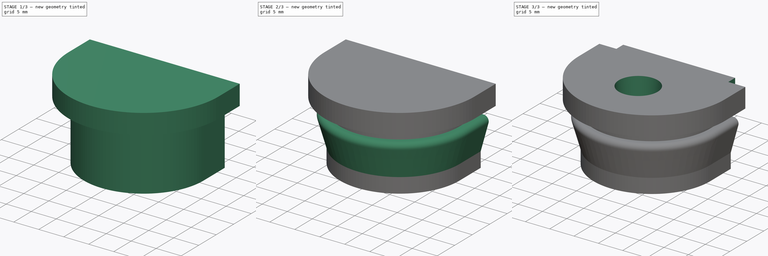
[diagram: build sequence overview — one tinted view per stage of 3, left to right]
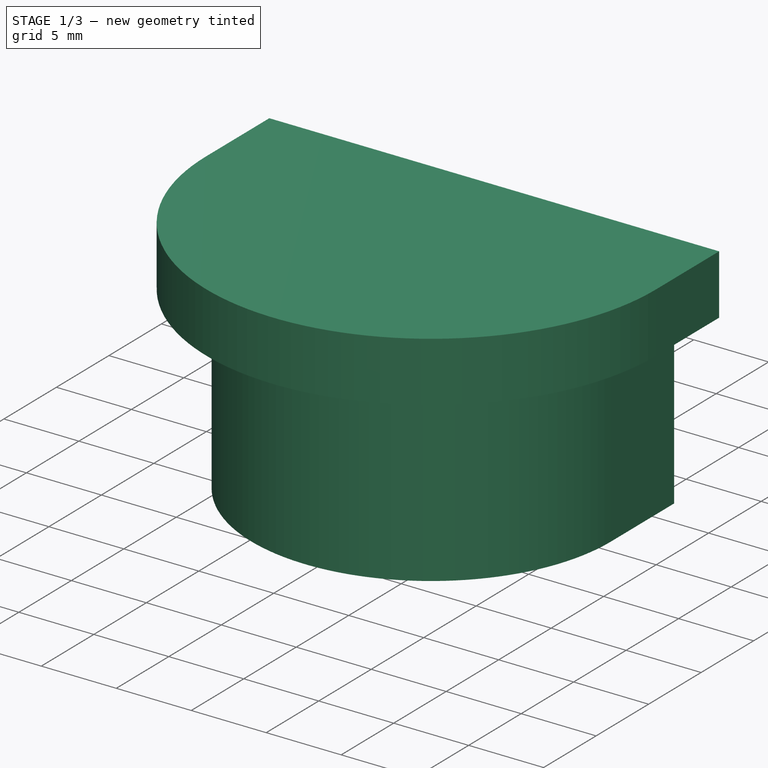
[diagram: stage 1 of 3 — iso view after this stage's code; geometry added in this stage tinted green]
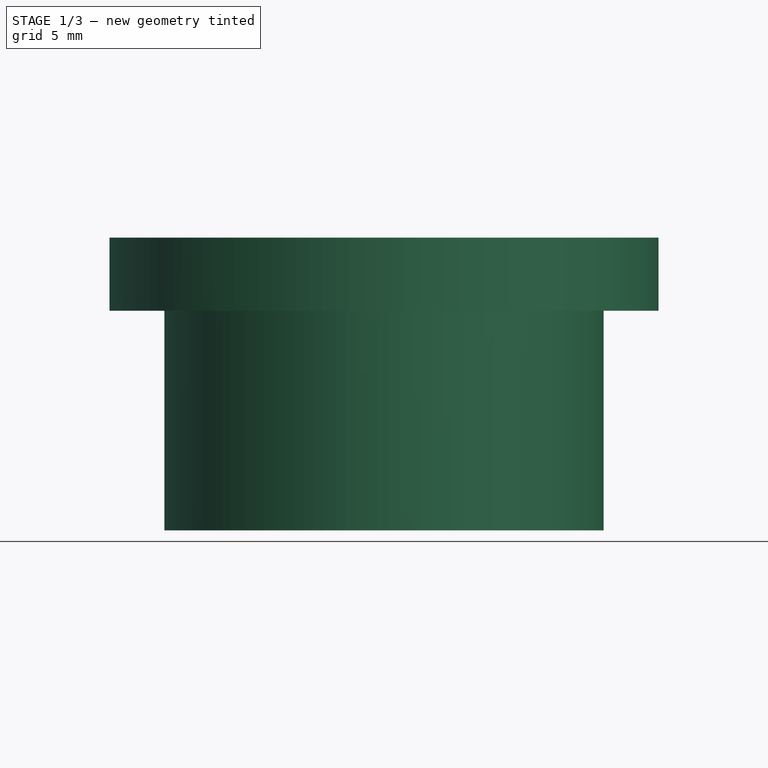
[diagram: stage 1 of 3 — front view after this stage's code; geometry added in this stage tinted green]
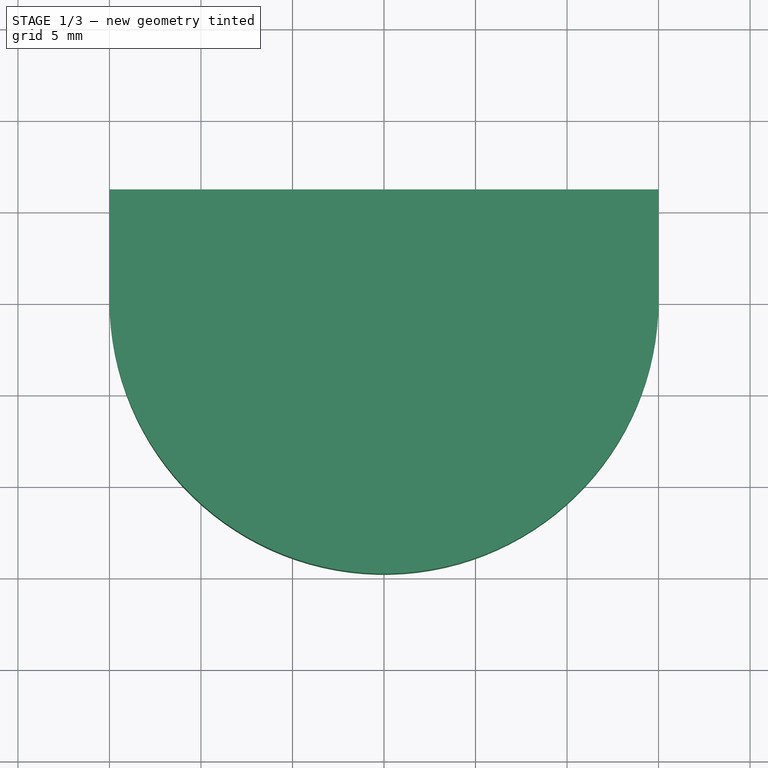
[diagram: stage 1 of 3 — top view after this stage's code; geometry added in this stage tinted green]
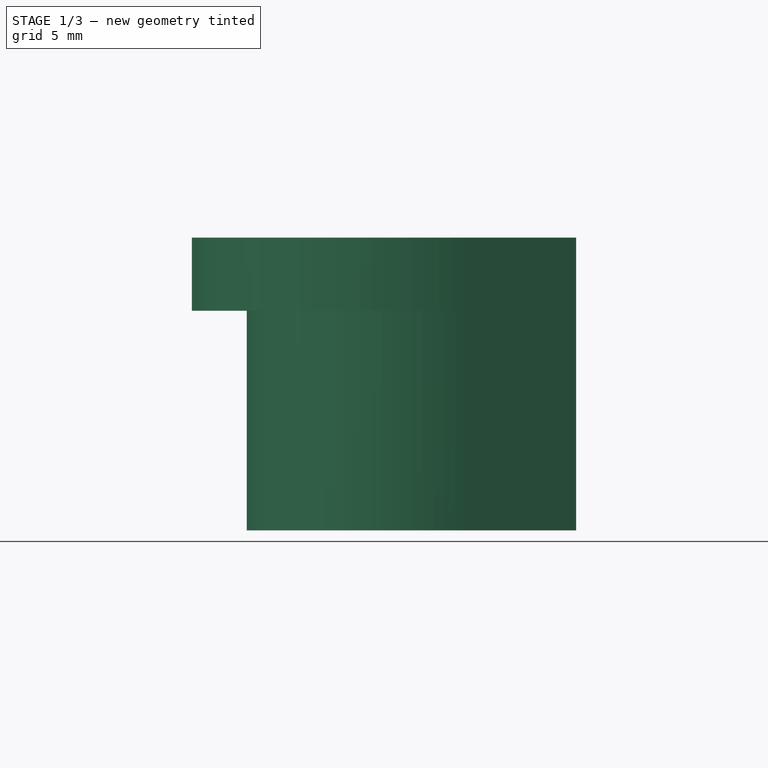
[diagram: stage 1 of 3 — right view after this stage's code; geometry added in this stage tinted green]
FCSTD DOCUMENT  (FreeCAD 1.0R39285 (Git))
Label: Ext_Box_Gland
License: CERN Open Hardware Licence permissive
LicenseURL: https://cern-ohl.web.cern.ch/
objects: Sketcher::SketchObject×5, PartDesign::Pad×3, PartDesign::AdditivePipe×1, PartDesign::Groove×1, PartDesign::Body×1
note: 26 computed .brp shape members not serialized (recipe doc carries the construction recipe); baked Part::Feature solids carry a one-line shape summary decoded from their .brp

FEATURE [Sketcher::SketchObject] Sketch
  ArcFitTolerance = 1e-06
  AttachmentSupport = -> [XY_Plane]
  FullyConstrained = true
  MakeInternals = false
  MapMode = 5
  sketch-geometry (4):
    g0: LineSegment StartX=-12 StartY=6 StartZ=0 EndX=12 EndY=6 EndZ=0
    g1: LineSegment StartX=12 StartY=6 StartZ=0 EndX=12 EndY=0 EndZ=0
    g2: ArcOfCircle CenterX=0 CenterY=0 CenterZ=0 NormalX=0 NormalY=0 NormalZ=1 AngleXU=0 Radius=12 StartAngle=3.14159 EndAngle=6.28319
    g3: LineSegment StartX=-12 StartY=-5.048e-13 StartZ=0 EndX=-12 EndY=6 EndZ=0
  constraints (11):
    c: Horizontal(g0)
    c: Coincident(g0,g1)
    c: PointOnObject(g1,g-1)
    c: Tangent(g1,g2) = 1.5708
    c: PointOnObject(g2,g-1)
    c: Coincident(g2,g3)
    c: Coincident(g3,g0)
    c: Vertical(g3)
    c: DistanceX(g0,g0) = 24
    c: Coincident(g2,g-1)
    c: DistanceY(g3,g3) = 6
FEATURE [PartDesign::Pad] Pad
  Direction = (0,0,1)
  Length = 12
  Length2 = 10
  Profile = -> Sketch
  ReferenceAxis = -> Sketch [N_Axis]
  Refine = true
  Suppressed = false
  Type = 0
FEATURE [Sketcher::SketchObject] Sketch001
  ArcFitTolerance = 1e-06
  AttachmentSupport = -> [Pad]
  ExternalGeometry = -> [Pad]
  FullyConstrained = true
  MakeInternals = false
  MapMode = 5
  Placement = pos=(0,0,12) rot=(0,0,1;0rad)
  sketch-geometry (4):
    g0: LineSegment StartX=15 StartY=6 StartZ=0 EndX=-15 EndY=6 EndZ=0
    g1: LineSegment StartX=-15 StartY=6 StartZ=0 EndX=-15 EndY=7.55e-14 EndZ=0
    g2: ArcOfCircle CenterX=0 CenterY=0 CenterZ=0 NormalX=0 NormalY=0 NormalZ=1 AngleXU=0 Radius=15 StartAngle=3.14159 EndAngle=6.28319
    g3: LineSegment StartX=15 StartY=3.63e-14 StartZ=0 EndX=15 EndY=6 EndZ=0
  constraints (11):
    c: Horizontal(g0)
    c: PointOnObject(g1,g-1)
    c: Tangent(g1,g2) = -1.5708
    c: PointOnObject(g2,g-1)
    c: Coincident(g2,g3)
    c: Coincident(g3,g0)
    c: Vertical(g3)
    c: Coincident(g2,g-1)
    c: Coincident(g0,g1)
    c: PointOnObject(g-3,g0)
    c: DistanceX(g0,g-3) = 3
FEATURE [PartDesign::Pad] Pad001
  BaseFeature = -> Pad
  Direction = (0,0,1)
  Length = 4
  Length2 = 10
  Profile = -> Sketch001
  ReferenceAxis = -> Sketch001 [N_Axis]
  Refine = true
  Suppressed = false
  Type = 0
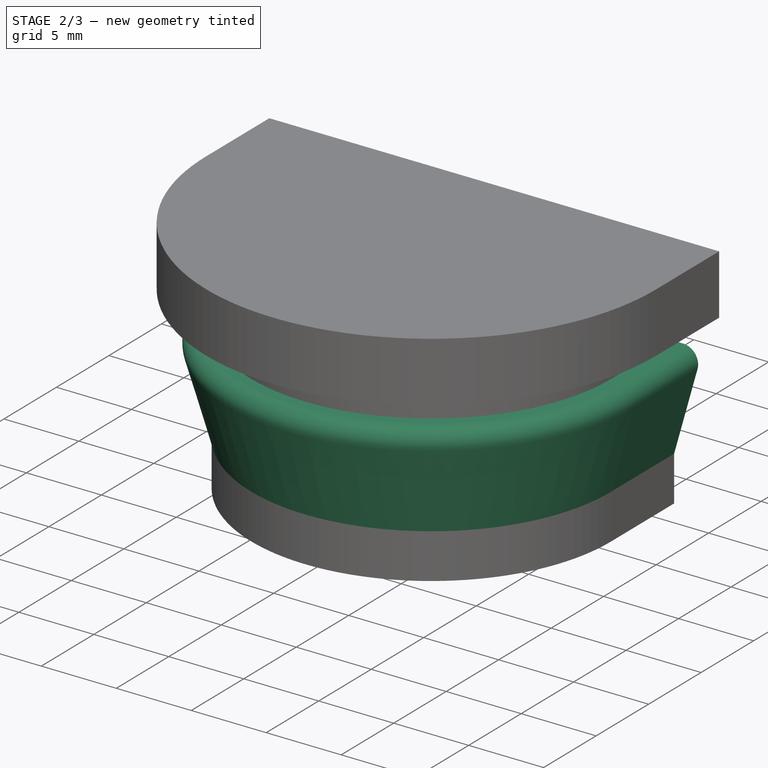
[diagram: stage 2 of 3 — iso view after this stage's code; geometry added in this stage tinted green]
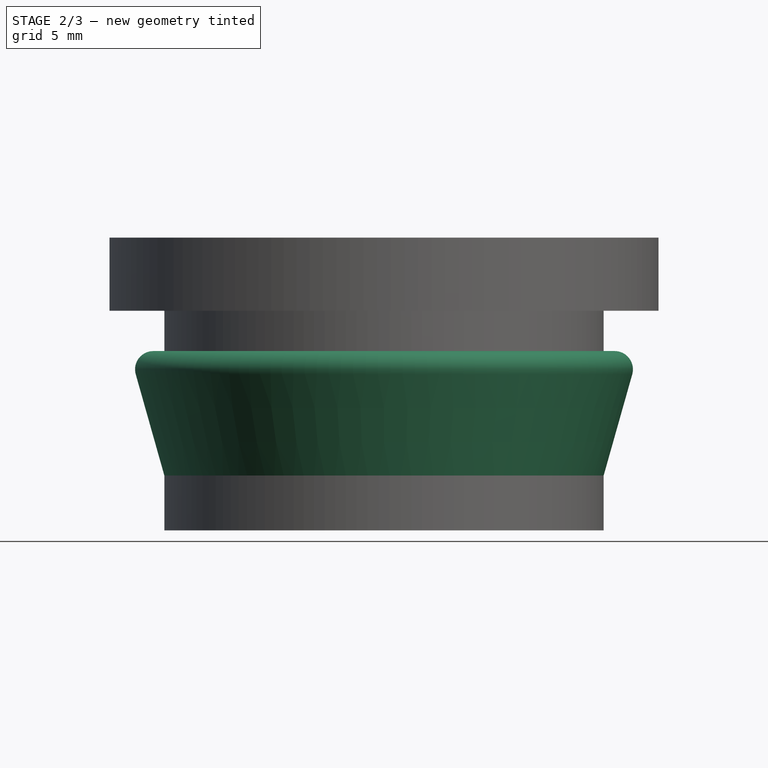
[diagram: stage 2 of 3 — front view after this stage's code; geometry added in this stage tinted green]
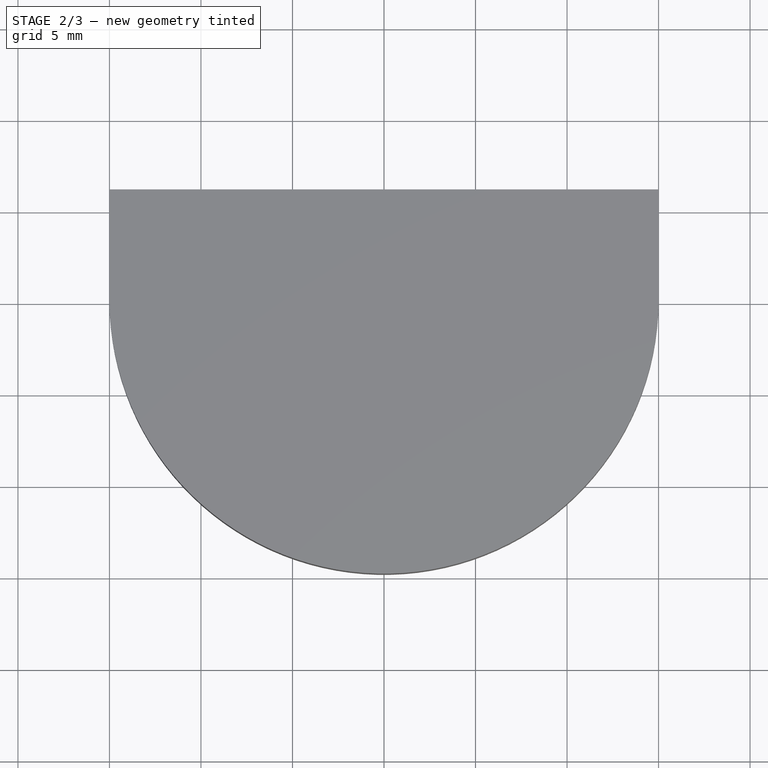
[diagram: stage 2 of 3 — top view after this stage's code; geometry added in this stage tinted green]
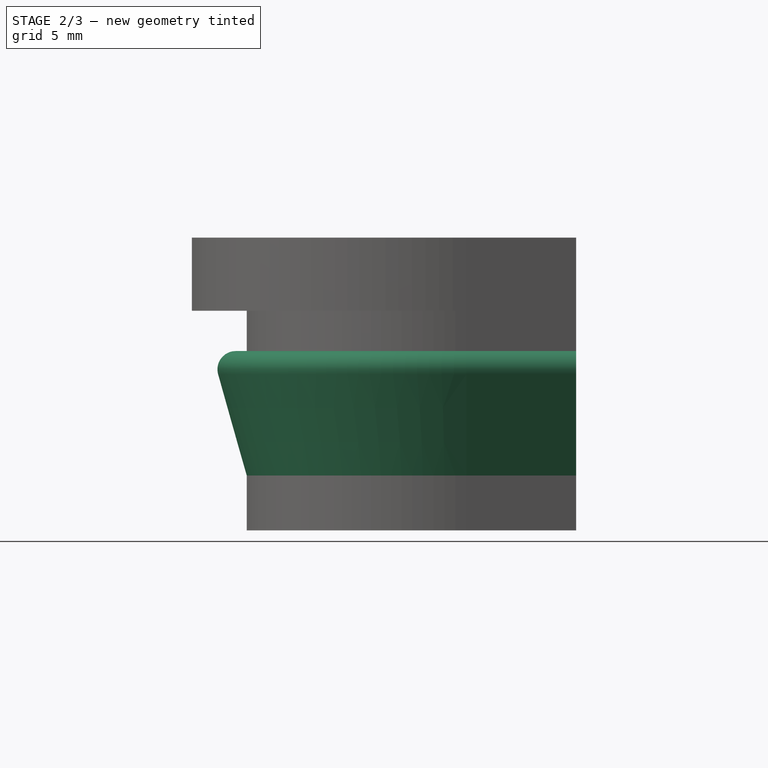
[diagram: stage 2 of 3 — right view after this stage's code; geometry added in this stage tinted green]
FEATURE [Sketcher::SketchObject] Sketch002
  ArcFitTolerance = 1e-06
  AttachmentSupport = -> [Pad001]
  ExternalGeometry = -> [Pad001]
  FullyConstrained = true
  MakeInternals = false
  MapMode = 5
  Placement = pos=(0,6,0) rot=(0,0.707107,0.707107;3.14159rad)
  sketch-geometry (4):
    g0: LineSegment StartX=-12 StartY=9.8 StartZ=0 EndX=-12.6 EndY=9.8 EndZ=0
    g1: ArcOfCircle CenterX=-12.6 CenterY=8.8 CenterZ=0 NormalX=0 NormalY=0 NormalZ=1 AngleXU=0 Radius=1 StartAngle=1.5708 EndAngle=3.41702
    g2: LineSegment StartX=-13.5623 StartY=8.52804 StartZ=0 EndX=-12 EndY=3 EndZ=0
    g3: LineSegment StartX=-12 StartY=3 StartZ=0 EndX=-12 EndY=9.8 EndZ=0
  constraints (11):
    c: PointOnObject(g0,g-3)
    c: Horizontal(g0)
    c: Tangent(g0,g1) = -1.5708
    c: Coincident(g2,g3)
    c: Coincident(g3,g0)
    c: DistanceY(g0,g-3) = 2.2
    c: Tangent(g1,g2) = -1.5708
    c: Radius(g1) = 1
    c: Vertical(g3)
    c: Distance(g2,g-3) = 3
    c: Distance(g0,g0) = 0.6
FEATURE [PartDesign::AdditivePipe] AdditivePipe
  AuxilleryCurvelinear = true
  AuxillerySpineTangent = false
  BaseFeature = -> Pad001
  Binormal = (0,0,0)
  Mode = 0
  Profile = -> Sketch002
  Refine = true
  Spine = -> Pad001 [Edge4,Edge11,Edge10]
  SpineTangent = false
  Suppressed = false
  Transformation = 0
  Transition = 0
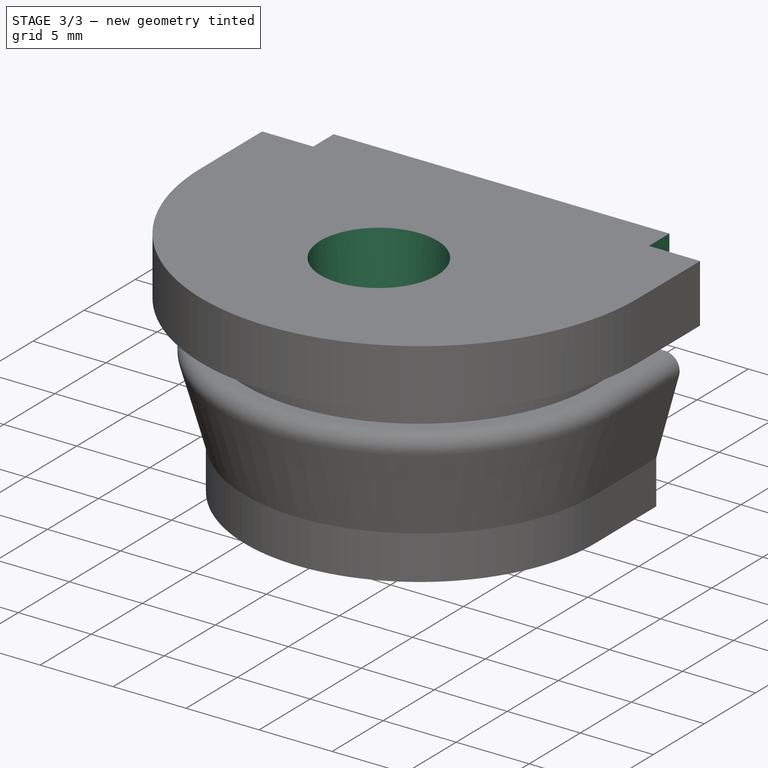
[diagram: stage 3 of 3 — iso view after this stage's code; geometry added in this stage tinted green]
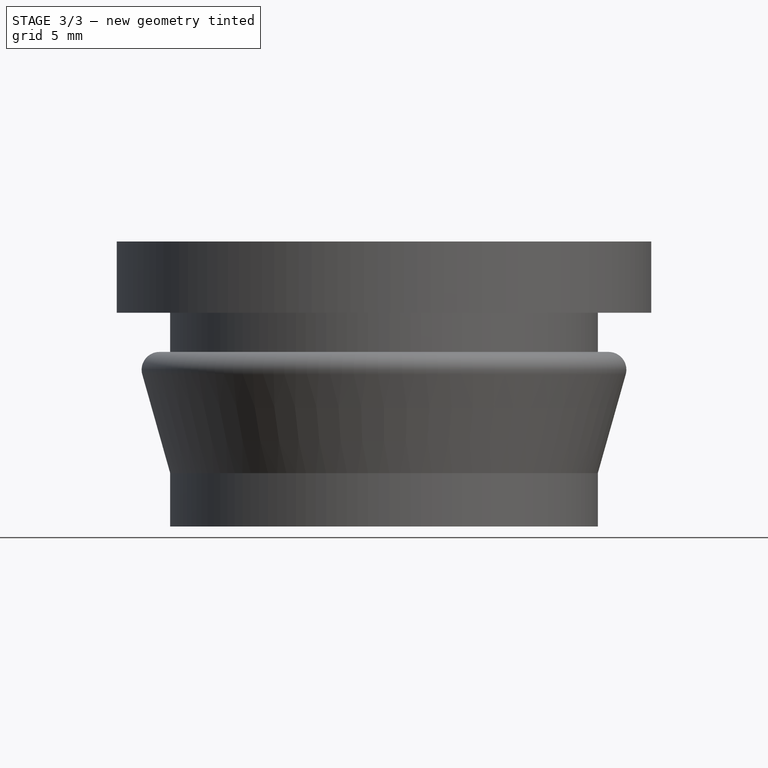
[diagram: stage 3 of 3 — front view after this stage's code; geometry added in this stage tinted green]
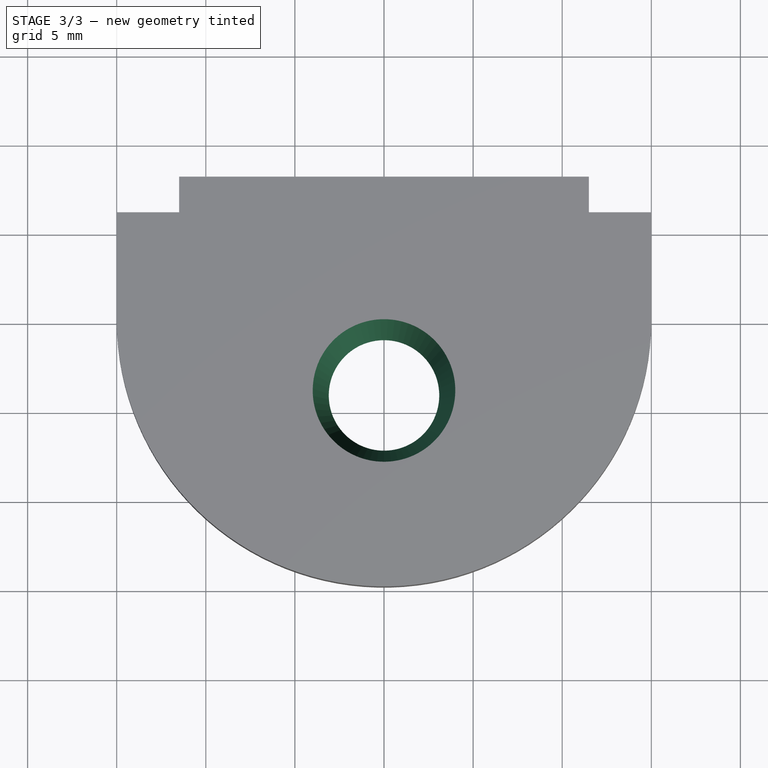
[diagram: stage 3 of 3 — top view after this stage's code; geometry added in this stage tinted green]
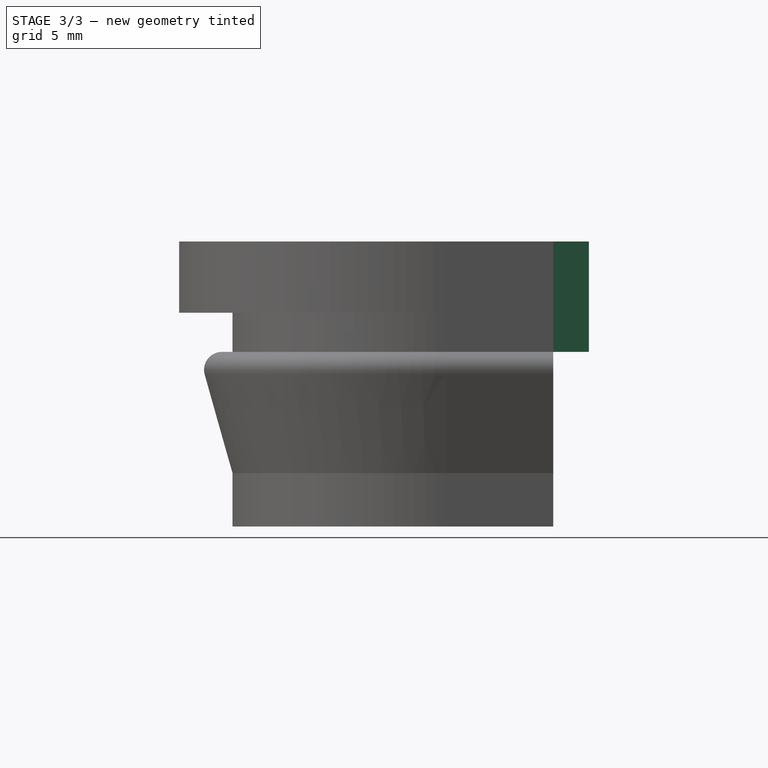
[diagram: stage 3 of 3 — right view after this stage's code; geometry added in this stage tinted green]
FEATURE [Sketcher::SketchObject] Sketch003
  ArcFitTolerance = 1e-06
  AttachmentSupport = -> [YZ_Plane]
  ExternalGeometry = -> [AdditivePipe]
  FullyConstrained = true
  MakeInternals = false
  MapMode = 5
  Placement = pos=(0,0,0) rot=(0.57735,0.57735,0.57735;2.0944rad)
  expr: Constraints[4] = 8 / 2
  sketch-geometry (4):
    g0: LineSegment StartX=-4 StartY=16 StartZ=0 EndX=-8 EndY=16 EndZ=0
    g1: LineSegment StartX=-8 StartY=16 StartZ=0 EndX=-7.1 EndY=0 EndZ=0
    g2: LineSegment StartX=-7.1 StartY=0 StartZ=0 EndX=-4 EndY=0 EndZ=0
    g3: LineSegment StartX=-4 StartY=0 StartZ=0 EndX=-4 EndY=16 EndZ=0
  constraints (11):
    c: Horizontal(g0)
    c: Coincident(g0,g1)
    c: Coincident(g1,g2)
    c: Horizontal(g2)
    c: DistanceX(g0,g0) = 4
    c: DistanceX(g2,g2) = 3.1
    c: Coincident(g0,g3)
    c: Coincident(g2,g3)
    c: Vertical(g3)
    c: PointOnObject(g2,g-1)
    c: Symmetric(g-3,g0,g0)
FEATURE [PartDesign::Groove] Groove
  Angle = 360
  Angle2 = 60
  Axis = (0,0,1)
  Base = (0,-4,0)
  BaseFeature = -> AdditivePipe
  Profile = -> Sketch003
  ReferenceAxis = -> Sketch003 [Edge4]
  Refine = true
  Reversed = true
  Suppressed = false
  Type = 0
FEATURE [Sketcher::SketchObject] Sketch004
  ArcFitTolerance = 1e-06
  AttachmentSupport = -> [AdditivePipe]
  ExternalGeometry = -> [AdditivePipe]
  FullyConstrained = true
  MakeInternals = false
  MapMode = 5
  Placement = pos=(-1.4e-15,6,0) rot=(0,0.707107,0.707107;3.14159rad)
  sketch-geometry (5):
    g0: LineSegment StartX=11.5 StartY=9.8 StartZ=0 EndX=11.5 EndY=16 EndZ=0
    g1: LineSegment StartX=11.5 StartY=16 StartZ=0 EndX=-11.5 EndY=16 EndZ=0
    g2: LineSegment StartX=-11.5 StartY=16 StartZ=0 EndX=-11.5 EndY=9.8 EndZ=0
    g3: LineSegment StartX=-11.5 StartY=9.8 StartZ=0 EndX=11.5 EndY=9.8 EndZ=0
    g4: GeomPoint [constr] X=0 Y=12.9 Z=0
  constraints (13):
    c: Coincident(g0,g1)
    c: Coincident(g1,g2)
    c: Coincident(g2,g3)
    c: Coincident(g3,g0)
    c: Vertical(g0)
    c: Vertical(g2)
    c: Horizontal(g1)
    c: Horizontal(g3)
    c: Symmetric(g2,g0,g4)
    c: PointOnObject(g4,g-2)
    c: PointOnObject(g1,g-3)
    c: DistanceX(g3,g3) = 23
    c: Horizontal(g-4,g2)
FEATURE [PartDesign::Pad] Pad002
  BaseFeature = -> Groove
  Direction = (0,1,-2e-16)
  Length = 2
  Length2 = 10
  Profile = -> Sketch004
  ReferenceAxis = -> Sketch004 [N_Axis]
  Refine = true
  Suppressed = false
  Type = 0
FEATURE [PartDesign::Body] Body
  AllowCompound = false
  Group = -> [Sketch,Pad,Sketch001,Pad001,Sketch002,AdditivePipe,Sketch003,Groove,Sketch004,Pad002]
  Origin = -> Origin
  Tip = -> Pad002
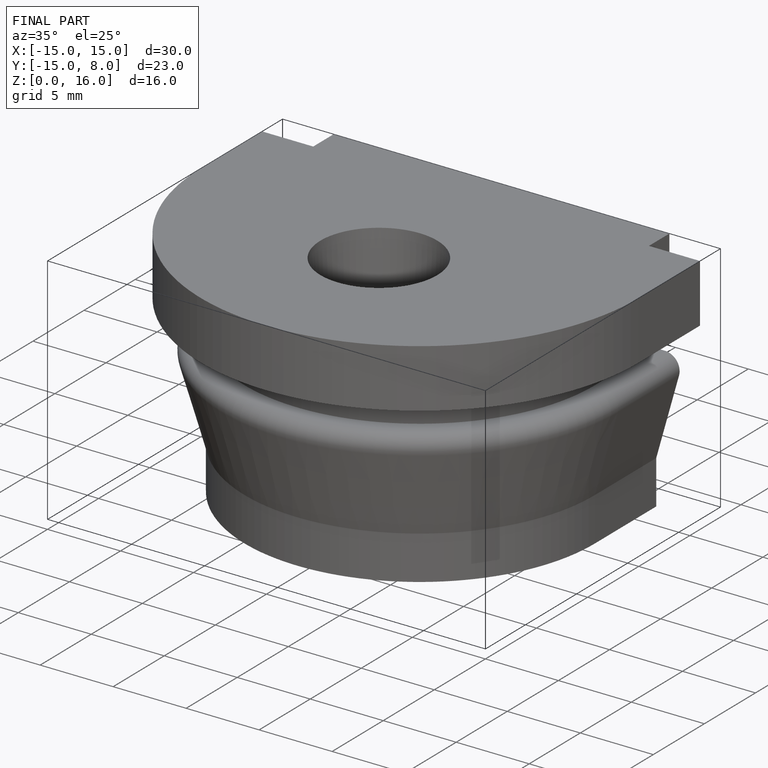
[diagram: finished part — iso view with bounding-box wireframe]
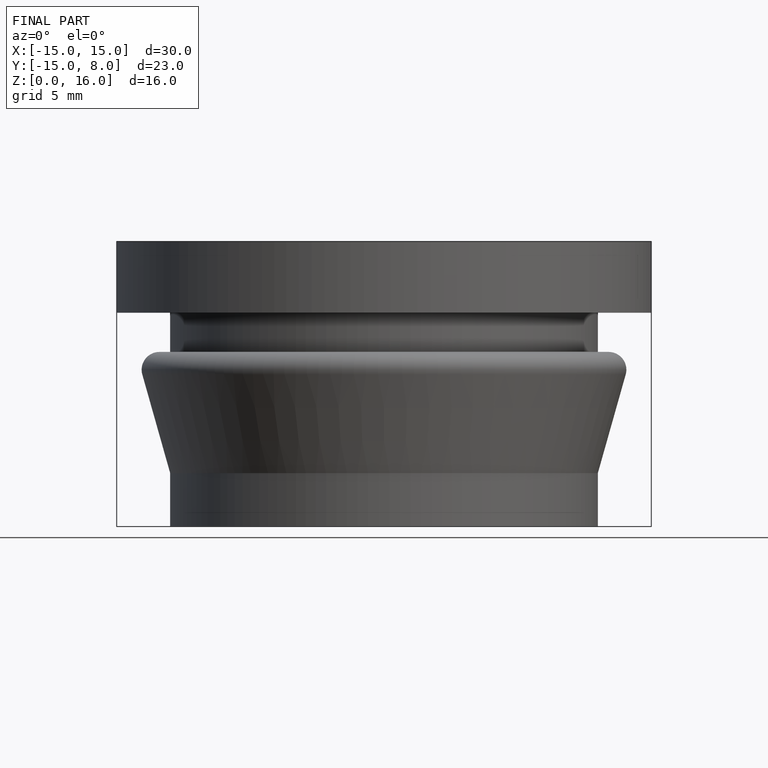
[diagram: finished part — front view with bounding-box wireframe]
